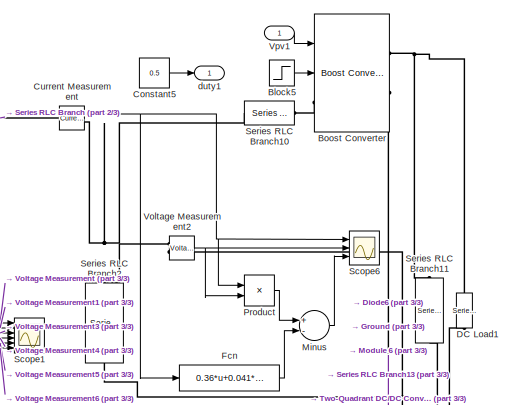
[diagram: root canvas - part 1/3, top right region]
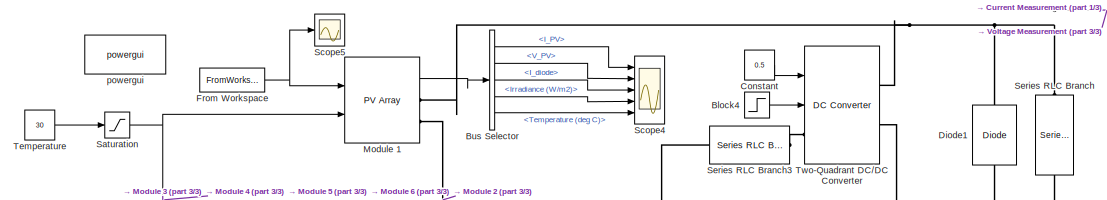
[diagram: root canvas - part 2/3, top left region]
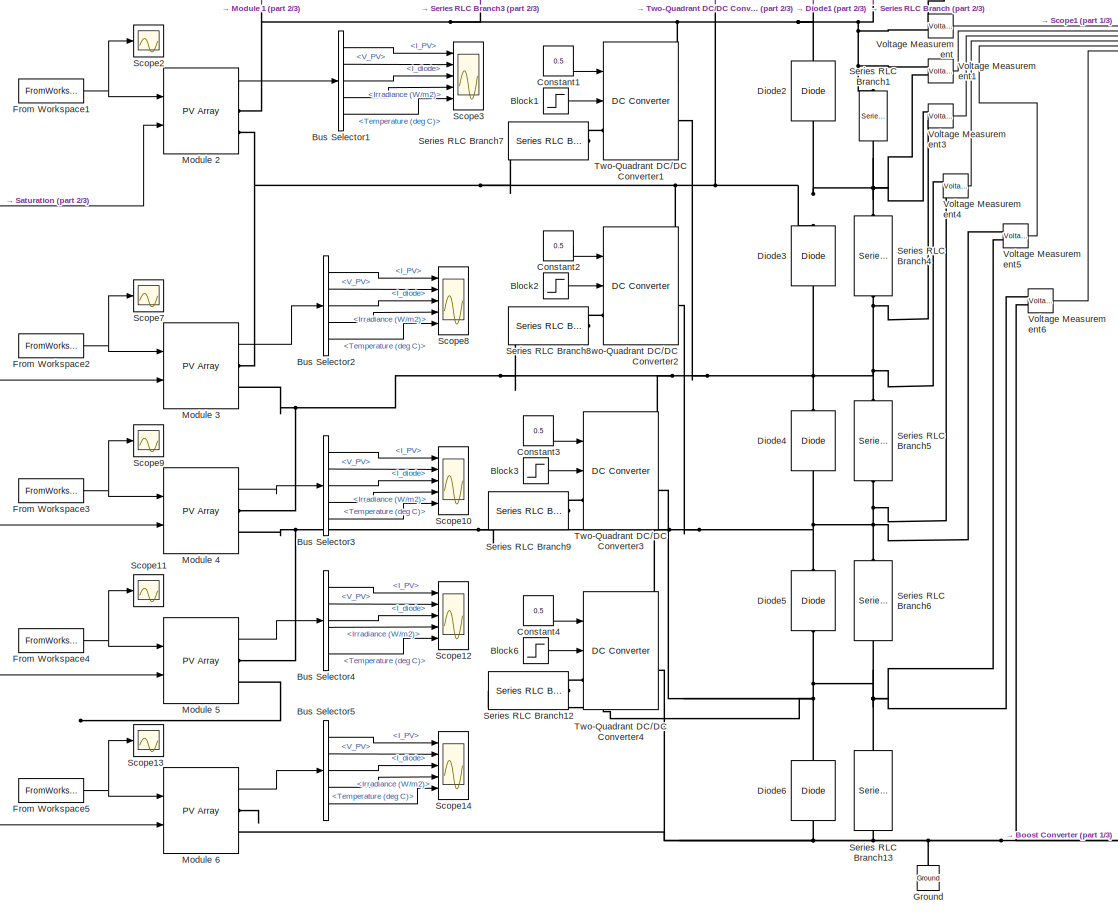
[diagram: root canvas - part 3/3, center side, full height]
MODEL slx_eea67e55f4d1
KIND model
CONFIG AbsTol = auto
CONFIG EnableMultiTasking = off
CONFIG FixedStep = auto
CONFIG MaxStep = auto
CONFIG MinStep = auto
CONFIG RelTol = 1e-3
CONFIG SampleTimeConstraint = Unconstrained
CONFIG Solver = FixedStepDiscrete
CONFIG SolverName = FixedStepDiscrete
CONFIG StartTime = 0.0
CONFIG StopTime = 2
BLOCK [Step] Block1
  After = 0
  Before = 1
  SampleTime = 5e-5
  Time = 0
BLOCK [Step] Block2
  After = 0
  Before = 1
  SampleTime = 5e-5
  Time = 0
BLOCK [Step] Block3
  After = 0
  Before = 1
  SampleTime = 5e-5
  Time = 0
BLOCK [Step] Block4
  After = 0
  Before = 1
  SampleTime = 5e-5
  Time = 0
BLOCK [Step] Block5
  After = 0
  Before = 1
  SampleTime = 5e-5
  Time = 0
BLOCK [Step] Block6
  After = 0
  Before = 1
  SampleTime = 5e-5
  Time = 0
BLOCK [Reference] Boost Converter  REF=powerlib/Power
Electronics/Boost Converter
  Ports = [2, 0, 0, 0, 0, 1, 2]
  SourceBlock = powerlib/Power\nElectronics/Boost Converter
  SourceProductBaseCode = PS
  SourceProductName = Simscape Power Systems
  SourceType = Boost Converter
BLOCK [BusSelector] Bus Selector
  OutputAsBus = off
  OutputSignals = I_PV,V_PV,I_diode,Irradiance (W/m2),Temperature (deg C)
  Ports = [1, 5]
BLOCK [BusSelector] Bus Selector1
  OutputAsBus = off
  OutputSignals = I_PV,V_PV,I_diode,Irradiance (W/m2),Temperature (deg C)
  Ports = [1, 5]
BLOCK [BusSelector] Bus Selector2
  OutputAsBus = off
  OutputSignals = I_PV,V_PV,I_diode,Irradiance (W/m2),Temperature (deg C)
  Ports = [1, 5]
BLOCK [BusSelector] Bus Selector3
  OutputAsBus = off
  OutputSignals = I_PV,V_PV,I_diode,Irradiance (W/m2),Temperature (deg C)
  Ports = [1, 5]
BLOCK [BusSelector] Bus Selector4
  OutputAsBus = off
  OutputSignals = I_PV,V_PV,I_diode,Irradiance (W/m2),Temperature (deg C)
  Ports = [1, 5]
BLOCK [BusSelector] Bus Selector5
  OutputAsBus = off
  OutputSignals = I_PV,V_PV,I_diode,Irradiance (W/m2),Temperature (deg C)
  Ports = [1, 5]
BLOCK [Constant] Constant
  Value = 0.5
BLOCK [Constant] Constant1
  Value = 0.5
BLOCK [Constant] Constant2
  Value = 0.5
BLOCK [Constant] Constant3
  Value = 0.5
BLOCK [Constant] Constant4
  Value = 0.5
BLOCK [Constant] Constant5
  Value = 0.5
BLOCK [Reference] Current Measurement  REF=powerlib/Measurements/Current Measurement
  Ports = [0, 1, 0, 0, 0, 1, 1]
  SourceBlock = powerlib/Measurements/Current Measurement
  SourceProductBaseCode = PS
  SourceProductName = Simscape Power Systems
  SourceType = Current Measurement
  UserDataPersistent = on
BLOCK [Reference] DC Load1  REF=powerlib/Elements/Series RLC Branch
  Ports = [0, 0, 0, 0, 0, 1, 1]
  SourceBlock = powerlib/Elements/Series RLC Branch
  SourceProductBaseCode = PS
  SourceProductName = Simscape Power Systems
  SourceType = Series RLC Branch
BLOCK [Reference] Diode1  REF=powerlib/Power
Electronics/Diode
  Ports = [0, 0, 0, 0, 0, 1, 1]
  SourceBlock = powerlib/Power\nElectronics/Diode
  SourceProductBaseCode = PS
  SourceProductName = Simscape Power Systems
  SourceType = Diode
BLOCK [Reference] Diode2  REF=powerlib/Power
Electronics/Diode
  Ports = [0, 0, 0, 0, 0, 1, 1]
  SourceBlock = powerlib/Power\nElectronics/Diode
  SourceProductBaseCode = PS
  SourceProductName = Simscape Power Systems
  SourceType = Diode
BLOCK [Reference] Diode3  REF=powerlib/Power
Electronics/Diode
  Ports = [0, 0, 0, 0, 0, 1, 1]
  SourceBlock = powerlib/Power\nElectronics/Diode
  SourceProductBaseCode = PS
  SourceProductName = Simscape Power Systems
  SourceType = Diode
BLOCK [Reference] Diode4  REF=powerlib/Power
Electronics/Diode
  Ports = [0, 0, 0, 0, 0, 1, 1]
  SourceBlock = powerlib/Power\nElectronics/Diode
  SourceProductBaseCode = PS
  SourceProductName = Simscape Power Systems
  SourceType = Diode
BLOCK [Reference] Diode5  REF=powerlib/Power
Electronics/Diode
  Ports = [0, 0, 0, 0, 0, 1, 1]
  SourceBlock = powerlib/Power\nElectronics/Diode
  SourceProductBaseCode = PS
  SourceProductName = Simscape Power Systems
  SourceType = Diode
BLOCK [Reference] Diode6  REF=powerlib/Power
Electronics/Diode
  Ports = [0, 0, 0, 0, 0, 1, 1]
  SourceBlock = powerlib/Power\nElectronics/Diode
  SourceProductBaseCode = PS
  SourceProductName = Simscape Power Systems
  SourceType = Diode
BLOCK [Fcn] Fcn
  Expr = 0.36*u+0.041*(u^2)
BLOCK [FromWorkspace] From Workspace
  OutDataTypeStr = double
  OutputAfterFinalValue = Holding final value
  SampleTime = 0
  VariableName = I10
  ZeroCross = on
BLOCK [FromWorkspace] From Workspace1
  OutDataTypeStr = double
  OutputAfterFinalValue = Holding final value
  SampleTime = 0
  VariableName = I12
  ZeroCross = on
BLOCK [FromWorkspace] From Workspace2
  OutDataTypeStr = double
  OutputAfterFinalValue = Holding final value
  SampleTime = 0
  VariableName = I14
  ZeroCross = on
BLOCK [FromWorkspace] From Workspace3
  OutDataTypeStr = double
  OutputAfterFinalValue = Holding final value
  SampleTime = 0
  VariableName = I16
  ZeroCross = on
BLOCK [FromWorkspace] From Workspace4
  OutDataTypeStr = double
  OutputAfterFinalValue = Holding final value
  SampleTime = 0
  VariableName = I18
  ZeroCross = on
BLOCK [FromWorkspace] From Workspace5
  OutDataTypeStr = double
  OutputAfterFinalValue = Holding final value
  SampleTime = 0
  VariableName = I20
  ZeroCross = on
BLOCK [Reference] Ground  REF=powerlib/Elements/Ground
  Ports = [0, 0, 0, 0, 0, 1]
  SourceBlock = powerlib/Elements/Ground
  SourceProductBaseCode = PS
  SourceProductName = Simscape Power Systems
  SourceType = Ground
BLOCK [Sum] Minus
  InputSameDT = off
  Inputs = +-
  OutDataTypeStr = Inherit: Inherit via internal rule
  Ports = [2, 1]
  SaturateOnIntegerOverflow = off
BLOCK [Reference] Module 1  REF=re_lib/Solar/PV Array
  Ports = [2, 1, 0, 0, 0, 0, 2]
  SourceBlock = re_lib/Solar/PV Array
  SourceProductBaseCode = PS
  SourceProductName = Simscape Power Systems
  SourceType = PV array
BLOCK [Reference] Module 2  REF=re_lib/Solar/PV Array
  Ports = [2, 1, 0, 0, 0, 0, 2]
  SourceBlock = re_lib/Solar/PV Array
  SourceProductBaseCode = PS
  SourceProductName = Simscape Power Systems
  SourceType = PV array
BLOCK [Reference] Module 3  REF=re_lib/Solar/PV Array
  Ports = [2, 1, 0, 0, 0, 0, 2]
  SourceBlock = re_lib/Solar/PV Array
  SourceProductBaseCode = PS
  SourceProductName = Simscape Power Systems
  SourceType = PV array
BLOCK [Reference] Module 4  REF=re_lib/Solar/PV Array
  Ports = [2, 1, 0, 0, 0, 0, 2]
  SourceBlock = re_lib/Solar/PV Array
  SourceProductBaseCode = PS
  SourceProductName = Simscape Power Systems
  SourceType = PV array
BLOCK [Reference] Module 5  REF=re_lib/Solar/PV Array
  Ports = [2, 1, 0, 0, 0, 0, 2]
  SourceBlock = re_lib/Solar/PV Array
  SourceProductBaseCode = PS
  SourceProductName = Simscape Power Systems
  SourceType = PV array
BLOCK [Reference] Module 6  REF=re_lib/Solar/PV Array
  Ports = [2, 1, 0, 0, 0, 0, 2]
  SourceBlock = re_lib/Solar/PV Array
  SourceProductBaseCode = PS
  SourceProductName = Simscape Power Systems
  SourceType = PV array
BLOCK [Product] Product
  InputSameDT = off
  OutDataTypeStr = Inherit: Inherit via internal rule
  Ports = [2, 1]
  RndMeth = Floor
  SaturateOnIntegerOverflow = off
BLOCK [Saturate] Saturation
  InputPortMap = u0
  LowerLimit = 5
  Ports = [1, 1]
  UpperLimit = 55
BLOCK [Scope] Scope1
  Floating = off
  NumInputPorts = 6
  Ports = [6]
  ScopeSpecificationString = Simulink.scopes.TimeScopeBlockCfg('CurrentConfiguration', extmgr.ConfigurationSet(extmgr.Configuration('Core','General UI',true),extmgr.Configuration('Core','Source UI',true),extmgr.Configuration('Sources','WiredSimulink',true,'DataLoggingVariableName','ScopeData5'),extmgr.Configuration('Visuals','Time Domain',true,'SerializedDisplays',{struct('MinYLimReal','-1.65445','MaxYLimReal','8.03905','YLab...<+2010ch>
BLOCK [Scope] Scope10
  Floating = off
  NumInputPorts = 5
  Ports = [5]
  ScopeSpecificationString = Simulink.scopes.TimeScopeBlockCfg('CurrentConfiguration', extmgr.ConfigurationSet(extmgr.Configuration('Core','General UI',true),extmgr.Configuration('Core','Source UI',true),extmgr.Configuration('Sources','WiredSimulink',true,'DataLoggingVariableName','ScopeData4'),extmgr.Configuration('Visuals','Time Domain',true,'SerializedDisplays',{struct('MinYLimReal','-1.64699','MaxYLimReal','38.03084','YLa...<+1507ch>
BLOCK [Scope] Scope11
  Floating = off
  NumInputPorts = 1
  Ports = [1]
  ScopeSpecificationString = Simulink.scopes.TimeScopeBlockCfg('CurrentConfiguration', extmgr.ConfigurationSet(extmgr.Configuration('Core','General UI',true),extmgr.Configuration('Core','Source UI',true),extmgr.Configuration('Sources','WiredSimulink',true,'DataLoggingVariableName','ScopeData5'),extmgr.Configuration('Visuals','Time Domain',true,'SerializedDisplays',{struct('MinYLimReal','461.75','MaxYLimReal','524.25','YLabelR...<+1363ch>
BLOCK [Scope] Scope12
  Floating = off
  NumInputPorts = 5
  Ports = [5]
  ScopeSpecificationString = Simulink.scopes.TimeScopeBlockCfg('CurrentConfiguration', extmgr.ConfigurationSet(extmgr.Configuration('Core','General UI',true),extmgr.Configuration('Core','Source UI',true),extmgr.Configuration('Sources','WiredSimulink',true,'DataLoggingVariableName','ScopeData6'),extmgr.Configuration('Visuals','Time Domain',true,'SerializedDisplays',{struct('MinYLimReal','-1.64699','MaxYLimReal','38.03084','YLa...<+1507ch>
BLOCK [Scope] Scope13
  Floating = off
  NumInputPorts = 1
  Ports = [1]
  ScopeSpecificationString = Simulink.scopes.TimeScopeBlockCfg('CurrentConfiguration', extmgr.ConfigurationSet(extmgr.Configuration('Core','General UI',true),extmgr.Configuration('Core','Source UI',true),extmgr.Configuration('Sources','WiredSimulink',true,'DataLoggingVariableName','ScopeData1'),extmgr.Configuration('Visuals','Time Domain',true,'SerializedDisplays',{struct('MinYLimReal','461.75','MaxYLimReal','524.25','YLabelR...<+1363ch>
BLOCK [Scope] Scope14
  Floating = off
  NumInputPorts = 5
  Ports = [5]
  ScopeSpecificationString = Simulink.scopes.TimeScopeBlockCfg('CurrentConfiguration', extmgr.ConfigurationSet(extmgr.Configuration('Core','General UI',true),extmgr.Configuration('Core','Source UI',true),extmgr.Configuration('Sources','WiredSimulink',true,'DataLoggingVariableName','ScopeData2'),extmgr.Configuration('Visuals','Time Domain',true,'SerializedDisplays',{struct('MinYLimReal','-1.64699','MaxYLimReal','38.03084','YLa...<+1507ch>
BLOCK [Scope] Scope2
  Floating = off
  NumInputPorts = 1
  Ports = [1]
  ScopeSpecificationString = Simulink.scopes.TimeScopeBlockCfg('CurrentConfiguration', extmgr.ConfigurationSet(extmgr.Configuration('Core','General UI',true),extmgr.Configuration('Core','Source UI',true),extmgr.Configuration('Sources','WiredSimulink',true),extmgr.Configuration('Visuals','Time Domain',true,'SerializedDisplays',{struct('MinYLimReal','461.75','MaxYLimReal','524.25','YLabelReal','','MinYLimMag','461.75','MaxYLimM...<+1324ch>
BLOCK [Scope] Scope3
  Floating = off
  NumInputPorts = 5
  Ports = [5]
  ScopeSpecificationString = Simulink.scopes.TimeScopeBlockCfg('CurrentConfiguration', extmgr.ConfigurationSet(extmgr.Configuration('Core','General UI',true),extmgr.Configuration('Core','Source UI',true),extmgr.Configuration('Sources','WiredSimulink',true,'DataLoggingVariableName','ScopeData1'),extmgr.Configuration('Visuals','Time Domain',true,'SerializedDisplays',{struct('MinYLimReal','-1.64699','MaxYLimReal','38.03084','YLa...<+1507ch>
BLOCK [Scope] Scope4
  Floating = off
  NumInputPorts = 5
  Ports = [5]
  ScopeSpecificationString = Simulink.scopes.TimeScopeBlockCfg('CurrentConfiguration', extmgr.ConfigurationSet(extmgr.Configuration('Core','General UI',true),extmgr.Configuration('Core','Source UI',true),extmgr.Configuration('Sources','WiredSimulink',true,'DataLoggingVariableName','ScopeData2'),extmgr.Configuration('Visuals','Time Domain',true,'SerializedDisplays',{struct('MinYLimReal','-5.51288','MaxYLimReal','8.91312','YLab...<+1503ch>
BLOCK [Scope] Scope5
  Floating = off
  NumInputPorts = 1
  Ports = [1]
  ScopeSpecificationString = Simulink.scopes.TimeScopeBlockCfg('CurrentConfiguration', extmgr.ConfigurationSet(extmgr.Configuration('Core','General UI',true),extmgr.Configuration('Core','Source UI',true),extmgr.Configuration('Sources','WiredSimulink',true,'DataLoggingVariableName','ScopeData3'),extmgr.Configuration('Visuals','Time Domain',true,'SerializedDisplays',{struct('MinYLimReal','451.25','MaxYLimReal','618.75','YLabelR...<+1363ch>
BLOCK [Scope] Scope6
  Floating = off
  NumInputPorts = 3
  Ports = [3]
  ScopeSpecificationString = Simulink.scopes.TimeScopeBlockCfg('CurrentConfiguration', extmgr.ConfigurationSet(extmgr.Configuration('Core','General UI',true),extmgr.Configuration('Core','Source UI',true),extmgr.Configuration('Sources','WiredSimulink',true,'DataLoggingVariableName','ScopeData4'),extmgr.Configuration('Visuals','Time Domain',true,'SerializedDisplays',{struct('MinYLimReal','-15.35219','MaxYLimReal','138.17829','Y...<+1867ch>
BLOCK [Scope] Scope7
  Floating = off
  NumInputPorts = 1
  Ports = [1]
  ScopeSpecificationString = Simulink.scopes.TimeScopeBlockCfg('CurrentConfiguration', extmgr.ConfigurationSet(extmgr.Configuration('Core','General UI',true),extmgr.Configuration('Core','Source UI',true),extmgr.Configuration('Sources','WiredSimulink',true,'DataLoggingVariableName','ScopeData1'),extmgr.Configuration('Visuals','Time Domain',true,'SerializedDisplays',{struct('MinYLimReal','461.75','MaxYLimReal','524.25','YLabelR...<+1363ch>
BLOCK [Scope] Scope8
  Floating = off
  NumInputPorts = 5
  Ports = [5]
  ScopeSpecificationString = Simulink.scopes.TimeScopeBlockCfg('CurrentConfiguration', extmgr.ConfigurationSet(extmgr.Configuration('Core','General UI',true),extmgr.Configuration('Core','Source UI',true),extmgr.Configuration('Sources','WiredSimulink',true,'DataLoggingVariableName','ScopeData2'),extmgr.Configuration('Visuals','Time Domain',true,'SerializedDisplays',{struct('MinYLimReal','-1.64699','MaxYLimReal','38.03084','YLa...<+1507ch>
BLOCK [Scope] Scope9
  Floating = off
  NumInputPorts = 1
  Ports = [1]
  ScopeSpecificationString = Simulink.scopes.TimeScopeBlockCfg('CurrentConfiguration', extmgr.ConfigurationSet(extmgr.Configuration('Core','General UI',true),extmgr.Configuration('Core','Source UI',true),extmgr.Configuration('Sources','WiredSimulink',true,'DataLoggingVariableName','ScopeData3'),extmgr.Configuration('Visuals','Time Domain',true,'SerializedDisplays',{struct('MinYLimReal','461.75','MaxYLimReal','524.25','YLabelR...<+1363ch>
BLOCK [Reference] Series RLC Branch  REF=powerlib/Elements/Series RLC Branch
  Ports = [0, 0, 0, 0, 0, 1, 1]
  SourceBlock = powerlib/Elements/Series RLC Branch
  SourceProductBaseCode = PS
  SourceProductName = Simscape Power Systems
  SourceType = Series RLC Branch
BLOCK [Reference] Series RLC Branch1  REF=powerlib/Elements/Series RLC Branch
  Ports = [0, 0, 0, 0, 0, 1, 1]
  SourceBlock = powerlib/Elements/Series RLC Branch
  SourceProductBaseCode = PS
  SourceProductName = Simscape Power Systems
  SourceType = Series RLC Branch
BLOCK [Reference] Series RLC Branch10  REF=powerlib/Elements/Series RLC Branch
  Ports = [0, 0, 0, 0, 0, 1, 1]
  SourceBlock = powerlib/Elements/Series RLC Branch
  SourceProductBaseCode = PS
  SourceProductName = Simscape Power Systems
  SourceType = Series RLC Branch
BLOCK [Reference] Series RLC Branch11  REF=powerlib/Elements/Series RLC Branch
  Ports = [0, 0, 0, 0, 0, 1, 1]
  SourceBlock = powerlib/Elements/Series RLC Branch
  SourceProductBaseCode = PS
  SourceProductName = Simscape Power Systems
  SourceType = Series RLC Branch
BLOCK [Reference] Series RLC Branch12  REF=powerlib/Elements/Series RLC Branch
  Ports = [0, 0, 0, 0, 0, 1, 1]
  SourceBlock = powerlib/Elements/Series RLC Branch
  SourceProductBaseCode = PS
  SourceProductName = Simscape Power Systems
  SourceType = Series RLC Branch
BLOCK [Reference] Series RLC Branch13  REF=powerlib/Elements/Series RLC Branch
  Ports = [0, 0, 0, 0, 0, 1, 1]
  SourceBlock = powerlib/Elements/Series RLC Branch
  SourceProductBaseCode = PS
  SourceProductName = Simscape Power Systems
  SourceType = Series RLC Branch
BLOCK [Reference] Series RLC Branch2  REF=powerlib/Elements/Series RLC Branch
  Ports = [0, 0, 0, 0, 0, 1, 1]
  SourceBlock = powerlib/Elements/Series RLC Branch
  SourceProductBaseCode = PS
  SourceProductName = Simscape Power Systems
  SourceType = Series RLC Branch
BLOCK [Reference] Series RLC Branch3  REF=powerlib/Elements/Series RLC Branch
  Ports = [0, 0, 0, 0, 0, 1, 1]
  SourceBlock = powerlib/Elements/Series RLC Branch
  SourceProductBaseCode = PS
  SourceProductName = Simscape Power Systems
  SourceType = Series RLC Branch
BLOCK [Reference] Series RLC Branch4  REF=powerlib/Elements/Series RLC Branch
  Ports = [0, 0, 0, 0, 0, 1, 1]
  SourceBlock = powerlib/Elements/Series RLC Branch
  SourceProductBaseCode = PS
  SourceProductName = Simscape Power Systems
  SourceType = Series RLC Branch
BLOCK [Reference] Series RLC Branch5  REF=powerlib/Elements/Series RLC Branch
  Ports = [0, 0, 0, 0, 0, 1, 1]
  SourceBlock = powerlib/Elements/Series RLC Branch
  SourceProductBaseCode = PS
  SourceProductName = Simscape Power Systems
  SourceType = Series RLC Branch
BLOCK [Reference] Series RLC Branch6  REF=powerlib/Elements/Series RLC Branch
  Ports = [0, 0, 0, 0, 0, 1, 1]
  SourceBlock = powerlib/Elements/Series RLC Branch
  SourceProductBaseCode = PS
  SourceProductName = Simscape Power Systems
  SourceType = Series RLC Branch
BLOCK [Reference] Series RLC Branch7  REF=powerlib/Elements/Series RLC Branch
  Ports = [0, 0, 0, 0, 0, 1, 1]
  SourceBlock = powerlib/Elements/Series RLC Branch
  SourceProductBaseCode = PS
  SourceProductName = Simscape Power Systems
  SourceType = Series RLC Branch
BLOCK [Reference] Series RLC Branch8  REF=powerlib/Elements/Series RLC Branch
  Ports = [0, 0, 0, 0, 0, 1, 1]
  SourceBlock = powerlib/Elements/Series RLC Branch
  SourceProductBaseCode = PS
  SourceProductName = Simscape Power Systems
  SourceType = Series RLC Branch
BLOCK [Reference] Series RLC Branch9  REF=powerlib/Elements/Series RLC Branch
  Ports = [0, 0, 0, 0, 0, 1, 1]
  SourceBlock = powerlib/Elements/Series RLC Branch
  SourceProductBaseCode = PS
  SourceProductName = Simscape Power Systems
  SourceType = Series RLC Branch
BLOCK [Constant] Temperature
  Value = 30
BLOCK [Reference] Two-Quadrant DC//DC Converter  REF=powerlib/Power
Electronics/Two-Quadrant
DC//DC Converter
  Ports = [2, 0, 0, 0, 0, 1, 2]
  SourceBlock = powerlib/Power\nElectronics/Two-Quadrant\nDC//DC Converter
  SourceProductBaseCode = PS
  SourceProductName = Simscape Power Systems
  SourceType = Two-Quadrant DC/DC Converter
BLOCK [Reference] Two-Quadrant DC//DC Converter1  REF=powerlib/Power
Electronics/Two-Quadrant
DC//DC Converter
  Ports = [2, 0, 0, 0, 0, 1, 2]
  SourceBlock = powerlib/Power\nElectronics/Two-Quadrant\nDC//DC Converter
  SourceProductBaseCode = PS
  SourceProductName = Simscape Power Systems
  SourceType = Two-Quadrant DC/DC Converter
BLOCK [Reference] Two-Quadrant DC//DC Converter2  REF=powerlib/Power
Electronics/Two-Quadrant
DC//DC Converter
  Ports = [2, 0, 0, 0, 0, 1, 2]
  SourceBlock = powerlib/Power\nElectronics/Two-Quadrant\nDC//DC Converter
  SourceProductBaseCode = PS
  SourceProductName = Simscape Power Systems
  SourceType = Two-Quadrant DC/DC Converter
BLOCK [Reference] Two-Quadrant DC//DC Converter3  REF=powerlib/Power
Electronics/Two-Quadrant
DC//DC Converter
  Ports = [2, 0, 0, 0, 0, 1, 2]
  SourceBlock = powerlib/Power\nElectronics/Two-Quadrant\nDC//DC Converter
  SourceProductBaseCode = PS
  SourceProductName = Simscape Power Systems
  SourceType = Two-Quadrant DC/DC Converter
BLOCK [Reference] Two-Quadrant DC//DC Converter4  REF=powerlib/Power
Electronics/Two-Quadrant
DC//DC Converter
  Ports = [2, 0, 0, 0, 0, 1, 2]
  SourceBlock = powerlib/Power\nElectronics/Two-Quadrant\nDC//DC Converter
  SourceProductBaseCode = PS
  SourceProductName = Simscape Power Systems
  SourceType = Two-Quadrant DC/DC Converter
BLOCK [Reference] Voltage Measurement  REF=powerlib/Measurements/Voltage Measurement
  Ports = [0, 1, 0, 0, 0, 2]
  SourceBlock = powerlib/Measurements/Voltage Measurement
  SourceProductBaseCode = PS
  SourceProductName = Simscape Power Systems
  SourceType = Voltage Measurement
  UserDataPersistent = on
BLOCK [Reference] Voltage Measurement1  REF=powerlib/Measurements/Voltage Measurement
  Ports = [0, 1, 0, 0, 0, 2]
  SourceBlock = powerlib/Measurements/Voltage Measurement
  SourceProductBaseCode = PS
  SourceProductName = Simscape Power Systems
  SourceType = Voltage Measurement
  UserDataPersistent = on
BLOCK [Reference] Voltage Measurement2  REF=powerlib/Measurements/Voltage Measurement
  Ports = [0, 1, 0, 0, 0, 2]
  SourceBlock = powerlib/Measurements/Voltage Measurement
  SourceProductBaseCode = PS
  SourceProductName = Simscape Power Systems
  SourceType = Voltage Measurement
  UserDataPersistent = on
BLOCK [Reference] Voltage Measurement3  REF=powerlib/Measurements/Voltage Measurement
  Ports = [0, 1, 0, 0, 0, 2]
  SourceBlock = powerlib/Measurements/Voltage Measurement
  SourceProductBaseCode = PS
  SourceProductName = Simscape Power Systems
  SourceType = Voltage Measurement
  UserDataPersistent = on
BLOCK [Reference] Voltage Measurement4  REF=powerlib/Measurements/Voltage Measurement
  Ports = [0, 1, 0, 0, 0, 2]
  SourceBlock = powerlib/Measurements/Voltage Measurement
  SourceProductBaseCode = PS
  SourceProductName = Simscape Power Systems
  SourceType = Voltage Measurement
  UserDataPersistent = on
BLOCK [Reference] Voltage Measurement5  REF=powerlib/Measurements/Voltage Measurement
  Ports = [0, 1, 0, 0, 0, 2]
  SourceBlock = powerlib/Measurements/Voltage Measurement
  SourceProductBaseCode = PS
  SourceProductName = Simscape Power Systems
  SourceType = Voltage Measurement
  UserDataPersistent = on
BLOCK [Reference] Voltage Measurement6  REF=powerlib/Measurements/Voltage Measurement
  Ports = [0, 1, 0, 0, 0, 2]
  SourceBlock = powerlib/Measurements/Voltage Measurement
  SourceProductBaseCode = PS
  SourceProductName = Simscape Power Systems
  SourceType = Voltage Measurement
  UserDataPersistent = on
BLOCK [Inport] Vpv1
  IconDisplay = Port number
  OutDataTypeStr = double
  PortDimensions = 1
  SampleTime = [0.0001,0]
  SamplingMode = Sample based
  SignalType = real
BLOCK [Outport] duty1
  IconDisplay = Port number
  OutDataTypeStr = double
  PortDimensions = 1
  SampleTime = [0.0001,0]
  SamplingMode = Sample based
  SignalType = real
BLOCK [Reference] powergui  REF=powerlib/powergui
  Ports = []
  Priority = 1
  SourceBlock = powerlib/powergui
  SourceProductBaseCode = PS
  SourceProductName = Simscape Power Systems
  SourceType = PSB option menu block
LINE Block1:1 -> Two-Quadrant DC//DC Converter1:2
LINE Block2:1 -> Two-Quadrant DC//DC Converter2:2
LINE Block3:1 -> Two-Quadrant DC//DC Converter3:2
LINE Block4:1 -> Two-Quadrant DC//DC Converter:2
LINE Block5:1 -> Boost Converter:2
LINE Block6:1 -> Two-Quadrant DC//DC Converter4:2
LINE Bus Selector1:1 -> Scope3:1
LINE Bus Selector1:2 -> Scope3:2
LINE Bus Selector1:3 -> Scope3:3
LINE Bus Selector1:4 -> Scope3:4
LINE Bus Selector1:5 -> Scope3:5
LINE Bus Selector2:1 -> Scope8:1
LINE Bus Selector2:2 -> Scope8:2
LINE Bus Selector2:3 -> Scope8:3
LINE Bus Selector2:4 -> Scope8:4
LINE Bus Selector2:5 -> Scope8:5
LINE Bus Selector3:1 -> Scope10:1
LINE Bus Selector3:2 -> Scope10:2
LINE Bus Selector3:3 -> Scope10:3
LINE Bus Selector3:4 -> Scope10:4
LINE Bus Selector3:5 -> Scope10:5
LINE Bus Selector4:1 -> Scope12:1
LINE Bus Selector4:2 -> Scope12:2
LINE Bus Selector4:3 -> Scope12:3
LINE Bus Selector4:4 -> Scope12:4
LINE Bus Selector4:5 -> Scope12:5
LINE Bus Selector5:1 -> Scope14:1
LINE Bus Selector5:2 -> Scope14:2
LINE Bus Selector5:3 -> Scope14:3
LINE Bus Selector5:4 -> Scope14:4
LINE Bus Selector5:5 -> Scope14:5
LINE Bus Selector:1 -> Scope4:1
LINE Bus Selector:2 -> Scope4:2
LINE Bus Selector:3 -> Scope4:3
LINE Bus Selector:4 -> Scope4:4
LINE Bus Selector:5 -> Scope4:5
LINE Constant1:1 -> Two-Quadrant DC//DC Converter1:1
LINE Constant2:1 -> Two-Quadrant DC//DC Converter2:1
LINE Constant3:1 -> Two-Quadrant DC//DC Converter3:1
LINE Constant4:1 -> Two-Quadrant DC//DC Converter4:1
LINE Constant5:1 -> duty1:1
LINE Constant:1 -> Two-Quadrant DC//DC Converter:1
NET Current Measurement:1 -> Fcn:1, Product:1, Scope6:1
LINE Fcn:1 -> Minus:2
NET From Workspace1:1 -> Module 2:1, Scope2:1
NET From Workspace2:1 -> Module 3:1, Scope7:1
NET From Workspace3:1 -> Module 4:1, Scope9:1
NET From Workspace4:1 -> Module 5:1, Scope11:1
NET From Workspace5:1 -> Module 6:1, Scope13:1
NET From Workspace:1 -> Module 1:1, Scope5:1
LINE Minus:1 -> Scope6:3
LINE Module 1:1 -> Bus Selector:1
LINE Module 2:1 -> Bus Selector1:1
LINE Module 3:1 -> Bus Selector2:1
LINE Module 4:1 -> Bus Selector3:1
LINE Module 5:1 -> Bus Selector4:1
LINE Module 6:1 -> Bus Selector5:1
LINE Product:1 -> Minus:1
NET Saturation:1 -> Module 1:2, Module 2:2, Module 3:2, Module 4:2, Module 5:2, Module 6:2
LINE Temperature:1 -> Saturation:1
LINE Voltage Measurement1:1 -> Scope1:2
NET Voltage Measurement2:1 -> Product:2, Scope6:2
LINE Voltage Measurement3:1 -> Scope1:3
LINE Voltage Measurement4:1 -> Scope1:4
LINE Voltage Measurement5:1 -> Scope1:5
LINE Voltage Measurement6:1 -> Scope1:6
LINE Voltage Measurement:1 -> Scope1:1
LINE Vpv1:1 -> Boost Converter:1
PLINE Boost Converter:LConn1 -- Series RLC Branch10:RConn1
PNET net1: Boost Converter:RConn1 -- DC Load1:LConn1 -- Series RLC Branch11:LConn1
PNET net2: Boost Converter:RConn2 -- DC Load1:RConn1 -- Diode6:LConn1 -- Ground:LConn1 -- Module 6:RConn2 -- Series RLC Branch11:RConn1 -- Series RLC Branch13:RConn1 -- Series RLC Branch2:RConn1 -- Two-Quadrant DC//DC Converter4:RConn2 -- Voltage Measurement2:LConn2 -- Voltage Measurement6:LConn2
PNET net3: Current Measurement:LConn1 -- Diode1:RConn1 -- Module 1:RConn1 -- Series RLC Branch:LConn1 -- Two-Quadrant DC//DC Converter:RConn1 -- Voltage Measurement:LConn1
PNET net4: Current Measurement:RConn1 -- Series RLC Branch10:LConn1 -- Series RLC Branch2:LConn1 -- Voltage Measurement2:LConn1
PNET net5: Diode1:LConn1 -- Diode2:RConn1 -- Module 1:RConn2 -- Module 2:RConn1 -- Series RLC Branch1:LConn1 -- Series RLC Branch3:LConn1 -- Series RLC Branch:RConn1 -- Two-Quadrant DC//DC Converter1:RConn1 -- Voltage Measurement1:LConn1 -- Voltage Measurement:LConn2
PNET net6: Diode2:LConn1 -- Diode3:RConn1 -- Module 2:RConn2 -- Module 3:RConn1 -- Series RLC Branch1:RConn1 -- Series RLC Branch4:LConn1 -- Series RLC Branch7:LConn1 -- Two-Quadrant DC//DC Converter2:RConn1 -- Two-Quadrant DC//DC Converter:RConn2 -- Voltage Measurement1:LConn2 -- Voltage Measurement3:LConn1
PNET net7: Diode3:LConn1 -- Diode4:RConn1 -- Module 3:RConn2 -- Module 4:RConn1 -- Series RLC Branch4:RConn1 -- Series RLC Branch5:LConn1 -- Series RLC Branch8:LConn1 -- Two-Quadrant DC//DC Converter1:RConn2 -- Two-Quadrant DC//DC Converter3:RConn1 -- Voltage Measurement3:LConn2 -- Voltage Measurement4:LConn1
PNET net8: Diode4:LConn1 -- Diode5:RConn1 -- Module 4:RConn2 -- Module 5:RConn1 -- Series RLC Branch5:RConn1 -- Series RLC Branch6:LConn1 -- Series RLC Branch9:LConn1 -- Two-Quadrant DC//DC Converter2:RConn2 -- Two-Quadrant DC//DC Converter4:RConn1 -- Voltage Measurement4:LConn2 -- Voltage Measurement5:LConn1
PNET net9: Diode5:LConn1 -- Diode6:RConn1 -- Module 5:RConn2 -- Module 6:RConn1 -- Series RLC Branch12:LConn1 -- Series RLC Branch13:LConn1 -- Series RLC Branch6:RConn1 -- Two-Quadrant DC//DC Converter3:RConn2 -- Voltage Measurement5:LConn2 -- Voltage Measurement6:LConn1
PLINE Series RLC Branch12:RConn1 -- Two-Quadrant DC//DC Converter4:LConn1
PLINE Series RLC Branch3:RConn1 -- Two-Quadrant DC//DC Converter:LConn1
PLINE Series RLC Branch7:RConn1 -- Two-Quadrant DC//DC Converter1:LConn1
PLINE Series RLC Branch8:RConn1 -- Two-Quadrant DC//DC Converter2:LConn1
PLINE Series RLC Branch9:RConn1 -- Two-Quadrant DC//DC Converter3:LConn1
note: NET lines group one-source signal fan-out (src -> all destinations, sorted); 1:1 wires keep LINE; PNET lines group multi-terminal physical nets as a canonical sorted terminal list (undirected conserving connections); 2-terminal nets keep the pairwise PLINE form
